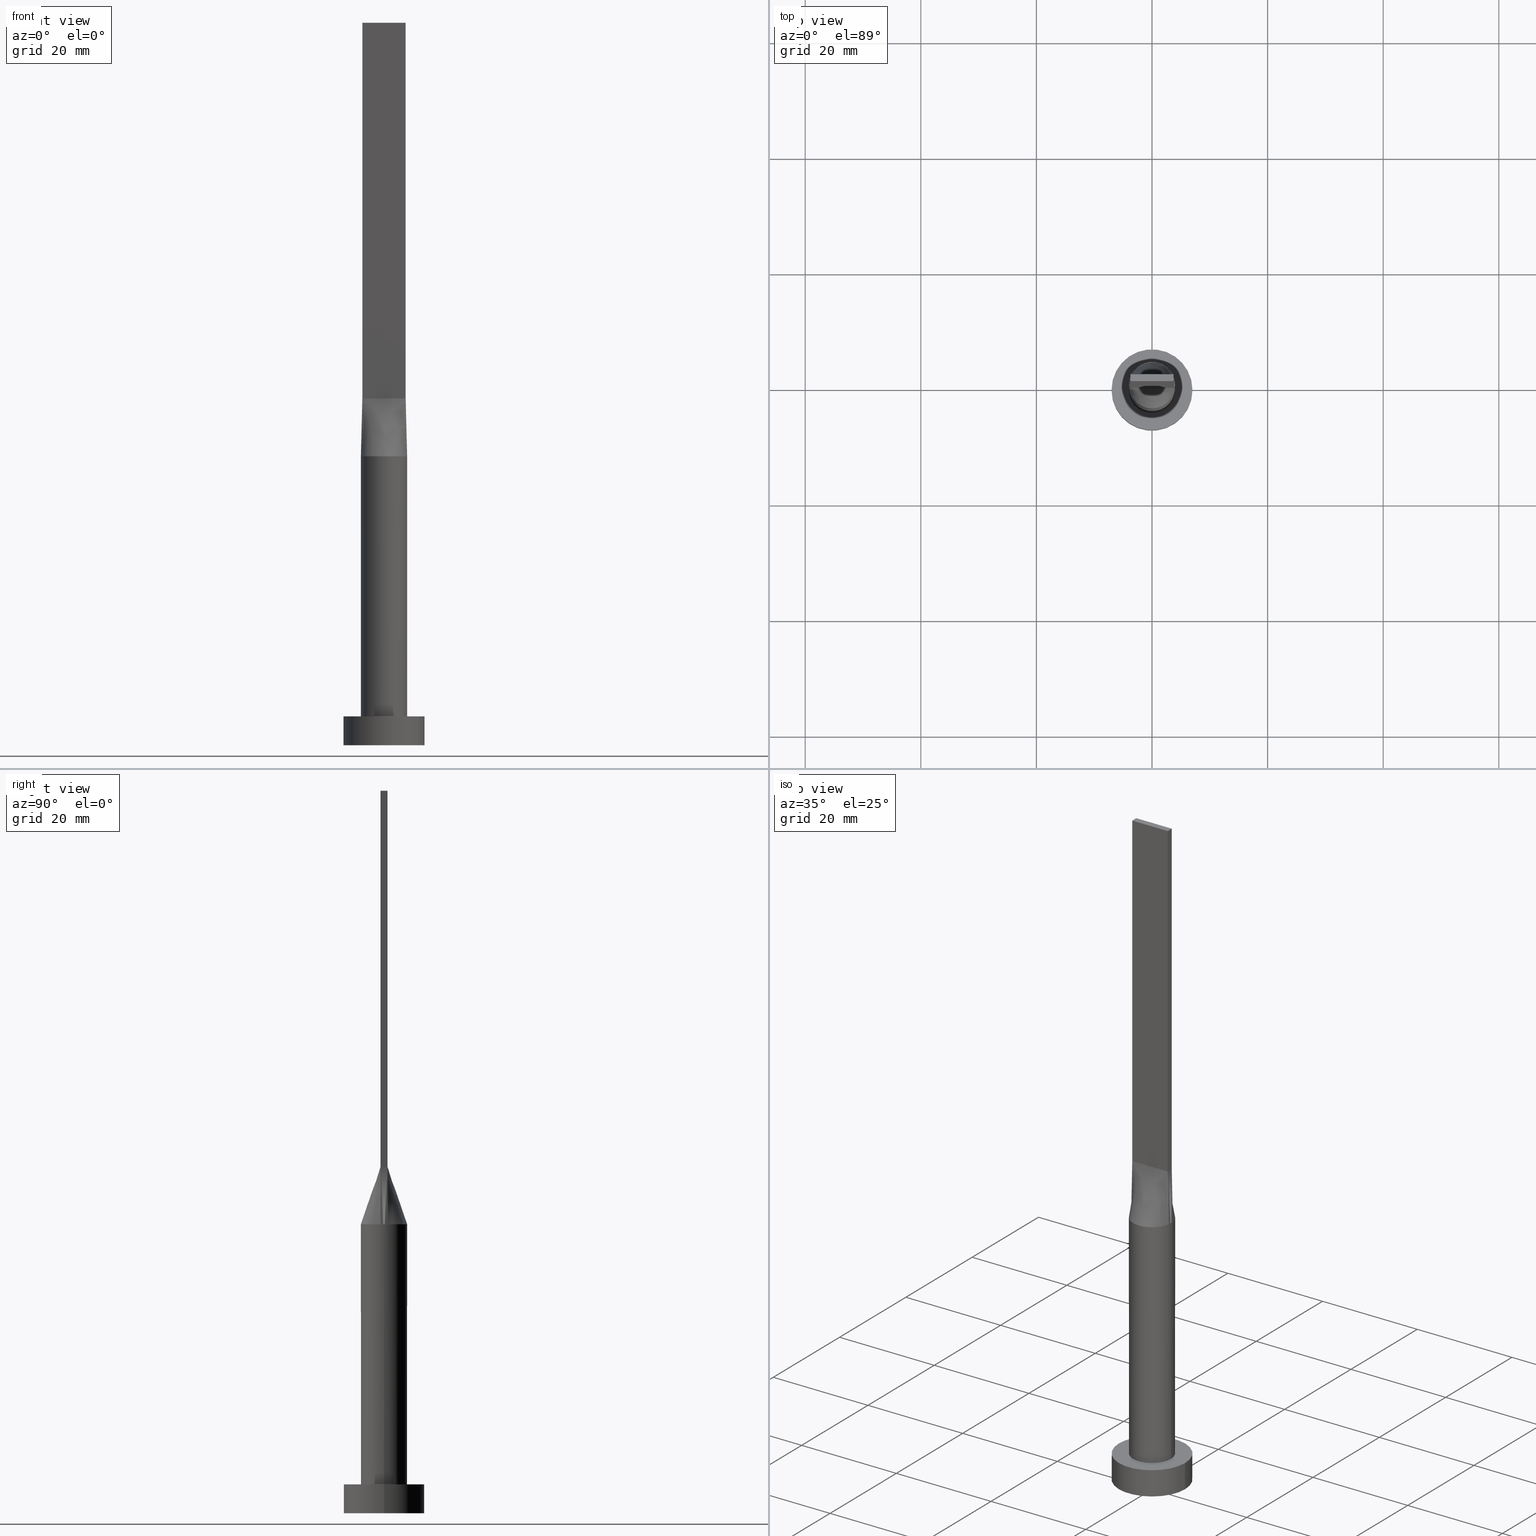
[diagram: canonical four-view strip — front | top / right | iso, engineering-drawing reading convention]
A machine part, canonical four-view strip (front | top / right | iso — engineering-drawing reading convention). The complete STEP part file that produces these views, byte-faithful:
ISO-10303-21;
HEADER;
FILE_DESCRIPTION (( 'STEP AP203' ),
    '1' );
FILE_NAME ('cbeb.STEP',
    '2023-02-13T10:47:16',
    ( '' ),
    ( '' ),
    'SwSTEP 2.0',
    'SolidWorks 2019',
    '' );
FILE_SCHEMA (( 'CONFIG_CONTROL_DESIGN' ));
ENDSEC;

DATA;
#1 = CARTESIAN_POINT ( 'NONE',  ( 3.800365609718893367, 1.311488165564687058, 49.99999999999998579 ) ) ;
#2 = CARTESIAN_POINT ( 'NONE',  ( -3.950111798046394007, -0.6320171791297864994, 49.99999999999999289 ) ) ;
#3 = DIRECTION ( 'NONE',  ( 0.000000000000000000, -1.000000000000000000, 0.000000000000000000 ) ) ;
#4 = VECTOR ( 'NONE', #518, 1000.000000000000000 ) ;
#5 = CARTESIAN_POINT ( 'NONE',  ( -3.800365609718893811, 1.311488165564686392, 49.99999999999999289 ) ) ;
#6 = DIRECTION ( 'NONE',  ( -0.000000000000000000, -0.000000000000000000, -1.000000000000000000 ) ) ;
#7 = APPROVAL_PERSON_ORGANIZATION ( #435, #467, #35 ) ;
#8 = DESIGN_CONTEXT ( 'detailed design', #320, 'design' ) ;
#9 = VERTEX_POINT ( 'NONE', #192 ) ;
#10 = CARTESIAN_POINT ( 'NONE',  ( -3.750000000000000000, -0.5999999999999993117, 60.00000000000000000 ) ) ;
#11 = CARTESIAN_POINT ( 'NONE',  ( 3.750000000000000000, -0.5999999999999997558, 125.0000000000000000 ) ) ;
#12 = VERTEX_POINT ( 'NONE', #267 ) ;
#13 = CARTESIAN_POINT ( 'NONE',  ( 0.5684794080625145130, 4.000000000000000000, 49.99999999999999289 ) ) ;
#14 = EDGE_CURVE ( 'NONE', #209, #164, #231, .T. ) ;
#15 = VECTOR ( 'NONE', #290, 1000.000000000000000 ) ;
#16 = CARTESIAN_POINT ( 'NONE',  ( 3.950097303404374038, 0.6320148730971578699, 49.99999999999999289 ) ) ;
#17 = APPROVAL_ROLE ( '' ) ;
#18 = AXIS2_PLACEMENT_3D ( 'NONE', #345, #313, #475 ) ;
#19 = LOCAL_TIME ( 11, 47, 16.00000000000000000, #400 ) ;
#20 = CARTESIAN_POINT ( 'NONE',  ( -2.500000000000000000, -0.5999999999999994227, 60.00000000000000000 ) ) ;
#21 = EDGE_CURVE ( 'NONE', #209, #177, #277, .T. ) ;
#22 = CARTESIAN_POINT ( 'NONE',  ( 0.3125000000000010547, 0.6000000000000000888, 59.99999999999999289 ) ) ;
#23 = LINE ( 'NONE', #203, #523 ) ;
#24 = B_SPLINE_SURFACE_WITH_KNOTS ( 'NONE', 3, 1, ( 
 ( #411, #10 ),
 ( #377, #157 ),
 ( #243, #504 ),
 ( #420, #20 ),
 ( #549, #64 ),
 ( #201, #330 ),
 ( #110, #286 ),
 ( #479, #87 ),
 ( #142, #33 ),
 ( #212, #353 ),
 ( #398, #476 ),
 ( #579, #346 ),
 ( #184, #522 ),
 ( #83, #137 ),
 ( #395, #263 ),
 ( #42, #519 ),
 ( #299, #389 ),
 ( #526, #133 ) ),
 .UNSPECIFIED., .F., .F., .F.,
 ( 4, 2, 2, 2, 2, 2, 2, 2, 4 ),
 ( 2, 2 ),
 ( 0.000000000000000000, 0.1250000000000000555, 0.2500000000000001110, 0.3750000000000001665, 0.5000000000000001110, 0.6250000000000001110, 0.7500000000000001110, 0.8750000000000000000, 1.000000000000000000 ),
 ( 0.000000000000000000, 1.000000000000000000 ),
 .UNSPECIFIED. ) ;
#25 = AXIS2_PLACEMENT_3D ( 'NONE', #485, #89, #265 ) ;
#26 = CARTESIAN_POINT ( 'NONE',  ( -3.124999999999999112, 0.6000000000000000888, 60.00000000000000000 ) ) ;
#27 = ORIENTED_EDGE ( 'NONE', *, *, #67, .F. ) ;
#28 = CARTESIAN_POINT ( 'NONE',  ( 0.000000000000000000, 0.000000000000000000, 5.000000000000000000 ) ) ;
#29 = ADVANCED_FACE ( 'NONE', ( #458 ), #59, .T. ) ;
#30 = ORIENTED_EDGE ( 'NONE', *, *, #378, .T. ) ;
#31 = DATE_AND_TIME ( #295, #160 ) ;
#32 = CARTESIAN_POINT ( 'NONE',  ( 1.250000000000001554, 0.6000000000000000888, 59.99999999999998579 ) ) ;
#33 = CARTESIAN_POINT ( 'NONE',  ( -0.3125000000000008327, -0.5999999999999995337, 60.00000000000000000 ) ) ;
#34 = ORIENTED_EDGE ( 'NONE', *, *, #116, .T. ) ;
#35 = APPROVAL_ROLE ( '' ) ;
#36 = DIRECTION ( 'NONE',  ( -0.000000000000000000, -0.000000000000000000, -1.000000000000000000 ) ) ;
#37 = DIRECTION ( 'NONE',  ( 0.000000000000000000, 0.000000000000000000, 1.000000000000000000 ) ) ;
#38 = ORIENTED_EDGE ( 'NONE', *, *, #40, .T. ) ;
#39 = APPROVAL_STATUS ( 'not_yet_approved' ) ;
#40 = EDGE_CURVE ( 'NONE', #9, #12, #138, .T. ) ;
#41 = CARTESIAN_POINT ( 'NONE',  ( 7.000000000000000000, 8.572527594031473190E-16, 0.000000000000000000 ) ) ;
#42 = CARTESIAN_POINT ( 'NONE',  ( 3.800365609718893367, -1.311488165564686614, 49.99999999999998579 ) ) ;
#43 = EDGE_LOOP ( 'NONE', ( #450, #220 ) ) ;
#44 = LINE ( 'NONE', #268, #4 ) ;
#45 = CARTESIAN_POINT ( 'NONE',  ( 4.000000000000000000, 4.898587196589411843E-16, 49.99999999999999289 ) ) ;
#46 = ORIENTED_EDGE ( 'NONE', *, *, #162, .F. ) ;
#47 = ORGANIZATION ( 'NEUR�EN�', 'NEUR�EN�', '' ) ;
#48 = LINE ( 'NONE', #226, #354 ) ;
#49 = CARTESIAN_POINT ( 'NONE',  ( 3.749999999999999556, 0.4000000000000002998, 59.99999999999999289 ) ) ;
#50 = ORIENTED_EDGE ( 'NONE', *, *, #261, .T. ) ;
#51 = CC_DESIGN_PERSON_AND_ORGANIZATION_ASSIGNMENT ( #225, #168, ( #199 ) ) ;
#52 = CARTESIAN_POINT ( 'NONE',  ( -3.750000000000000000, 0.6000000000000001998, 60.00000000000000000 ) ) ;
#53 =( NAMED_UNIT ( * ) SI_UNIT ( $, .STERADIAN. ) SOLID_ANGLE_UNIT ( ) );
#54 = ORIENTED_EDGE ( 'NONE', *, *, #21, .F. ) ;
#55 = DIRECTION ( 'NONE',  ( 1.000000000000000000, 0.000000000000000000, 0.000000000000000000 ) ) ;
#56 = APPROVAL_DATE_TIME ( #325, #339 ) ;
#57 = ORIENTED_EDGE ( 'NONE', *, *, #80, .T. ) ;
#58 = CARTESIAN_POINT ( 'NONE',  ( 1.134810363096318664, 3.874001625491799050, 49.99999999999999289 ) ) ;
#59 = CYLINDRICAL_SURFACE ( 'NONE', #276, 7.000000000000000000 ) ;
#60 = CARTESIAN_POINT ( 'NONE',  ( -3.750000000000000000, -0.5999999999999993117, 60.00000000000000000 ) ) ;
#61 = ADVANCED_FACE ( 'NONE', ( #406 ), #114, .T. ) ;
#62 = APPROVAL_STATUS ( 'not_yet_approved' ) ;
#63 = CARTESIAN_POINT ( 'NONE',  ( -2.127794970397209884, 3.430476893735948440, 49.99999999999999289 ) ) ;
#64 = CARTESIAN_POINT ( 'NONE',  ( -2.187500000000000000, -0.5999999999999994227, 60.00000000000000000 ) ) ;
#65 = AXIS2_PLACEMENT_3D ( 'NONE', #173, #401, #183 ) ;
#66 = CIRCLE ( 'NONE', #465, 4.000000000000000000 ) ;
#67 = EDGE_CURVE ( 'NONE', #386, #580, #554, .T. ) ;
#68 = CARTESIAN_POINT ( 'NONE',  ( 1.562500000000001332, 0.6000000000000000888, 59.99999999999998579 ) ) ;
#69 = CYLINDRICAL_SURFACE ( 'NONE', #488, 7.000000000000000000 ) ;
#70 = CARTESIAN_POINT ( 'NONE',  ( -0.5684794080625158452, 3.999999999999999112, 49.99999999999999289 ) ) ;
#71 = EDGE_LOOP ( 'NONE', ( #527, #167, #319, #185 ) ) ;
#72 = DIRECTION ( 'NONE',  ( -1.000000000000000000, 0.000000000000000000, 0.000000000000000000 ) ) ;
#73 = CC_DESIGN_PERSON_AND_ORGANIZATION_ASSIGNMENT ( #453, #328, ( #511 ) ) ;
#74 = ORIENTED_EDGE ( 'NONE', *, *, #151, .T. ) ;
#75 = PLANE ( 'NONE',  #337 ) ;
#76 = ORIENTED_EDGE ( 'NONE', *, *, #551, .F. ) ;
#77 = FACE_OUTER_BOUND ( 'NONE', #563, .T. ) ;
#78 = CARTESIAN_POINT ( 'NONE',  ( -4.000000000000000000, 0.000000000000000000, 5.000000000000000000 ) ) ;
#79 = ORIENTED_EDGE ( 'NONE', *, *, #314, .F. ) ;
#80 = EDGE_CURVE ( 'NONE', #119, #495, #23, .T. ) ;
#81 = AXIS2_PLACEMENT_3D ( 'NONE', #533, #37, #482 ) ;
#82 = DIRECTION ( 'NONE',  ( 0.000000000000000000, 0.000000000000000000, 1.000000000000000000 ) ) ;
#83 = CARTESIAN_POINT ( 'NONE',  ( 3.219262664220059023, -2.422342486356523938, 50.00000000000000000 ) ) ;
#84 = ORIENTED_EDGE ( 'NONE', *, *, #261, .F. ) ;
#85 = DATE_TIME_ROLE ( 'classification_date' ) ;
#86 = CARTESIAN_POINT ( 'NONE',  ( -3.750000000000000000, -0.5999999999999993117, 60.00000000000000000 ) ) ;
#87 = CARTESIAN_POINT ( 'NONE',  ( -0.6250000000000004441, -0.5999999999999994227, 60.00000000000000000 ) ) ;
#88 = ORIENTED_EDGE ( 'NONE', *, *, #571, .F. ) ;
#89 = DIRECTION ( 'NONE',  ( 0.000000000000000000, 0.000000000000000000, 1.000000000000000000 ) ) ;
#90 = ADVANCED_FACE ( 'NONE', ( #121 ), #69, .T. ) ;
#91 = CARTESIAN_POINT ( 'NONE',  ( 3.999684524546696540, 0.2119768420469383408, 49.99999999999999289 ) ) ;
#92 = DIRECTION ( 'NONE',  ( -0.000000000000000000, -0.000000000000000000, -1.000000000000000000 ) ) ;
#93 =( GEOMETRIC_REPRESENTATION_CONTEXT ( 3 ) GLOBAL_UNCERTAINTY_ASSIGNED_CONTEXT ( ( #414 ) ) GLOBAL_UNIT_ASSIGNED_CONTEXT ( ( #149, #457, #53 ) ) REPRESENTATION_CONTEXT ( 'NONE', 'WORKASPACE' ) );
#94 = DIRECTION ( 'NONE',  ( 1.000000000000000000, 1.065814103640150279E-14, 0.000000000000000000 ) ) ;
#95 = FACE_OUTER_BOUND ( 'NONE', #180, .T. ) ;
#96 = EDGE_LOOP ( 'NONE', ( #76, #46, #454, #534, #57, #355 ) ) ;
#97 = CARTESIAN_POINT ( 'NONE',  ( 7.000000000000000000, 8.572527594031473190E-16, 5.000000000000000000 ) ) ;
#98 = ORIENTED_EDGE ( 'NONE', *, *, #181, .F. ) ;
#99 = CARTESIAN_POINT ( 'NONE',  ( 3.461914487322979017, 2.043998057340944197, 49.99999999999997158 ) ) ;
#100 = ORIENTED_EDGE ( 'NONE', *, *, #349, .F. ) ;
#101 = VECTOR ( 'NONE', #331, 1000.000000000000000 ) ;
#102 = EDGE_CURVE ( 'NONE', #495, #434, #351, .T. ) ;
#103 = DIRECTION ( 'NONE',  ( -1.000000000000000000, 5.782411586589357392E-17, 0.000000000000000000 ) ) ;
#104 = VECTOR ( 'NONE', #497, 1000.000000000000000 ) ;
#105 = COORDINATED_UNIVERSAL_TIME_OFFSET ( 1, 0, .AHEAD. ) ;
#106 = CARTESIAN_POINT ( 'NONE',  ( 3.999842262273348936, 9.852009208038395466E-16, 49.99999999999999289 ) ) ;
#107 = CARTESIAN_POINT ( 'NONE',  ( -0.5684794080625158452, 3.999999999999999112, 49.99999999999999289 ) ) ;
#108 = EDGE_CURVE ( 'NONE', #129, #209, #165, .T. ) ;
#109 = CLOSED_SHELL ( 'NONE', ( #425, #29, #90, #250, #139, #418, #455, #556, #222, #61, #305, #528, #383, #484, #496 ) ) ;
#110 = CARTESIAN_POINT ( 'NONE',  ( -2.127794970397209884, -3.430476893735947996, 50.00000000000000000 ) ) ;
#111 = CARTESIAN_POINT ( 'NONE',  ( 3.437500000000000000, 0.6000000000000001998, 60.00000000000000000 ) ) ;
#112 = CIRCLE ( 'NONE', #234, 4.000000000000000000 ) ;
#113 = LINE ( 'NONE', #341, #15 ) ;
#114 = B_SPLINE_SURFACE_WITH_KNOTS ( 'NONE', 3, 1, ( 
 ( #365, #538 ),
 ( #291, #111 ),
 ( #293, #163 ),
 ( #117, #288 ),
 ( #506, #247 ),
 ( #296, #68 ),
 ( #249, #32 ),
 ( #382, #421 ),
 ( #161, #22 ),
 ( #70, #508 ),
 ( #512, #211 ),
 ( #422, #426 ),
 ( #202, #381 ),
 ( #429, #515 ),
 ( #424, #510 ),
 ( #334, #26 ),
 ( #466, #208 ),
 ( #379, #335 ) ),
 .UNSPECIFIED., .F., .F., .F.,
 ( 4, 2, 2, 2, 2, 2, 2, 2, 4 ),
 ( 2, 2 ),
 ( 0.000000000000000000, 0.1249999999999999445, 0.2499999999999998890, 0.3749999999999998335, 0.4999999999999997780, 0.6249999999999997780, 0.7499999999999998890, 0.8749999999999998890, 1.000000000000000000 ),
 ( 0.000000000000000000, 1.000000000000000000 ),
 .UNSPECIFIED. ) ;
#115 = FACE_OUTER_BOUND ( 'NONE', #403, .T. ) ;
#116 = EDGE_CURVE ( 'NONE', #572, #150, #113, .T. ) ;
#117 = CARTESIAN_POINT ( 'NONE',  ( 3.461914487322979017, 2.043998057340944197, 49.99999999999997158 ) ) ;
#118 = B_SPLINE_SURFACE_WITH_KNOTS ( 'NONE', 3, 1, ( 
 ( #219, #176 ),
 ( #221, #575 ),
 ( #179, #357 ),
 ( #91, #266 ),
 ( #445, #49 ),
 ( #227, #402 ) ),
 .UNSPECIFIED., .F., .F., .F.,
 ( 4, 2, 4 ),
 ( 2, 2 ),
 ( 0.000000000000000000, 0.5000000000000000000, 1.000000000000000000 ),
 ( 0.000000000000000000, 1.000000000000000000 ),
 .UNSPECIFIED. ) ;
#119 = VERTEX_POINT ( 'NONE', #544 ) ;
#120 = APPROVAL_STATUS ( 'not_yet_approved' ) ;
#121 = FACE_OUTER_BOUND ( 'NONE', #555, .T. ) ;
#122 = VERTEX_POINT ( 'NONE', #553 ) ;
#123 = APPROVAL_DATE_TIME ( #31, #197 ) ;
#124 = DIRECTION ( 'NONE',  ( 0.000000000000000000, 0.000000000000000000, 1.000000000000000000 ) ) ;
#125 = DIRECTION ( 'NONE',  ( -1.000000000000000000, 0.000000000000000000, 0.000000000000000000 ) ) ;
#126 = ORIENTED_EDGE ( 'NONE', *, *, #372, .T. ) ;
#127 = CARTESIAN_POINT ( 'NONE',  ( -3.749999999999999556, 0.4000000000000001887, 59.99999999999999289 ) ) ;
#128 = FACE_OUTER_BOUND ( 'NONE', #71, .T. ) ;
#129 = VERTEX_POINT ( 'NONE', #472 ) ;
#130 = AXIS2_PLACEMENT_3D ( 'NONE', #310, #82, #387 ) ;
#131 = AXIS2_PLACEMENT_3D ( 'NONE', #367, #321, #329 ) ;
#132 = CARTESIAN_POINT ( 'NONE',  ( 3.950097303404374038, 0.6320148730971578699, 49.99999999999999289 ) ) ;
#133 = CARTESIAN_POINT ( 'NONE',  ( 3.750000000000000000, -0.5999999999999997558, 60.00000000000000000 ) ) ;
#134 = VERTEX_POINT ( 'NONE', #252 ) ;
#135 = COORDINATED_UNIVERSAL_TIME_OFFSET ( 1, 0, .AHEAD. ) ;
#136 = CARTESIAN_POINT ( 'NONE',  ( -3.750000000000000000, -0.5999999999999993117, 60.00000000000000000 ) ) ;
#137 = CARTESIAN_POINT ( 'NONE',  ( 2.187499999999999556, -0.5999999999999996447, 60.00000000000000000 ) ) ;
#138 = LINE ( 'NONE', #228, #442 ) ;
#139 = ADVANCED_FACE ( 'NONE', ( #115 ), #75, .F. ) ;
#140 = CARTESIAN_POINT ( 'NONE',  ( -3.750000000000000000, 0.6000000000000001998, 60.00000000000000000 ) ) ;
#141 = PERSON ( 'NEUR�EN�', 'NEUR�EN�', 'NEUR�EN�', ('NEUR�EN�'), ('NEUR�EN�'), ('NEUR�EN�') ) ;
#142 = CARTESIAN_POINT ( 'NONE',  ( -0.5684794080625156232, -4.000000000000000000, 49.99999999999998579 ) ) ;
#143 = ORIENTED_EDGE ( 'NONE', *, *, #551, .T. ) ;
#144 = AXIS2_PLACEMENT_3D ( 'NONE', #302, #174, #269 ) ;
#145 = FACE_OUTER_BOUND ( 'NONE', #350, .T. ) ;
#146 = DIRECTION ( 'NONE',  ( 0.000000000000000000, 0.000000000000000000, 1.000000000000000000 ) ) ;
#147 = VERTEX_POINT ( 'NONE', #132 ) ;
#148 = CARTESIAN_POINT ( 'NONE',  ( 0.000000000000000000, 0.000000000000000000, 49.99999999999999289 ) ) ;
#149 =( LENGTH_UNIT ( ) NAMED_UNIT ( * ) SI_UNIT ( .MILLI., .METRE. ) );
#150 = VERTEX_POINT ( 'NONE', #41 ) ;
#151 = EDGE_CURVE ( 'NONE', #477, #177, #521, .T. ) ;
#152 = LINE ( 'NONE', #327, #104 ) ;
#153 = DATE_AND_TIME ( #498, #459 ) ;
#154 = VECTOR ( 'NONE', #468, 1000.000000000000000 ) ;
#155 = DIRECTION ( 'NONE',  ( 0.000000000000000000, 0.000000000000000000, 1.000000000000000000 ) ) ;
#156 = CC_DESIGN_PERSON_AND_ORGANIZATION_ASSIGNMENT ( #251, #214, ( #410 ) ) ;
#157 = CARTESIAN_POINT ( 'NONE',  ( -3.437500000000000000, -0.5999999999999993117, 60.00000000000000000 ) ) ;
#158 = DIRECTION ( 'NONE',  ( -0.000000000000000000, -0.000000000000000000, -1.000000000000000000 ) ) ;
#159 = CARTESIAN_POINT ( 'NONE',  ( 3.750000000000000000, 0.6000000000000001998, 125.0000000000000000 ) ) ;
#160 = LOCAL_TIME ( 11, 47, 16.00000000000000000, #568 ) ;
#161 = CARTESIAN_POINT ( 'NONE',  ( 0.5684794080625145130, 4.000000000000000000, 49.99999999999999289 ) ) ;
#162 = EDGE_CURVE ( 'NONE', #134, #343, #285, .T. ) ;
#163 = CARTESIAN_POINT ( 'NONE',  ( 3.125000000000000000, 0.6000000000000001998, 60.00000000000000000 ) ) ;
#164 = VERTEX_POINT ( 'NONE', #525 ) ;
#165 = LINE ( 'NONE', #159, #101 ) ;
#166 = APPROVAL_PERSON_ORGANIZATION ( #573, #197, #517 ) ;
#167 = ORIENTED_EDGE ( 'NONE', *, *, #581, .F. ) ;
#168 = PERSON_AND_ORGANIZATION_ROLE ( 'classification_officer' ) ;
#169 = CC_DESIGN_PERSON_AND_ORGANIZATION_ASSIGNMENT ( #376, #408, ( #446 ) ) ;
#170 = CARTESIAN_POINT ( 'NONE',  ( 3.750000000000000000, -0.5999999999999997558, 125.0000000000000000 ) ) ;
#171 = PLANE ( 'NONE',  #245 ) ;
#172 = ORIENTED_EDGE ( 'NONE', *, *, #359, .F. ) ;
#173 = CARTESIAN_POINT ( 'NONE',  ( 3.750000000000000000, 0.6000000000000001998, 125.0000000000000000 ) ) ;
#174 = DIRECTION ( 'NONE',  ( 1.000000000000000000, 0.000000000000000000, -0.000000000000000000 ) ) ;
#175 = CARTESIAN_POINT ( 'NONE',  ( -3.999684524546696096, 0.2119768420469390069, 49.99999999999999289 ) ) ;
#176 = CARTESIAN_POINT ( 'NONE',  ( 3.750000000000000000, -0.5999999999999997558, 60.00000000000000000 ) ) ;
#177 = VERTEX_POINT ( 'NONE', #52 ) ;
#178 = CARTESIAN_POINT ( 'NONE',  ( -3.749999999999999556, 0.2000000000000002887, 59.99999999999999289 ) ) ;
#179 = CARTESIAN_POINT ( 'NONE',  ( 3.999684524546696540, -0.2119768420469393122, 49.99999999999999289 ) ) ;
#180 = EDGE_LOOP ( 'NONE', ( #338, #270, #567, #309 ) ) ;
#181 = EDGE_CURVE ( 'NONE', #129, #122, #301, .T. ) ;
#182 = PERSON_AND_ORGANIZATION_ROLE ( 'design_supplier' ) ;
#183 = DIRECTION ( 'NONE',  ( 0.000000000000000000, -0.000000000000000000, -1.000000000000000000 ) ) ;
#184 = CARTESIAN_POINT ( 'NONE',  ( 2.553164211252348270, -3.116528153703943094, 49.99999999999999289 ) ) ;
#185 = ORIENTED_EDGE ( 'NONE', *, *, #21, .T. ) ;
#186 = CARTESIAN_POINT ( 'NONE',  ( 2.553164211252348714, 3.116528153703943538, 49.99999999999999289 ) ) ;
#187 = VECTOR ( 'NONE', #3, 1000.000000000000000 ) ;
#188 = ORIENTED_EDGE ( 'NONE', *, *, #412, .T. ) ;
#189 = AXIS2_PLACEMENT_3D ( 'NONE', #148, #417, #407 ) ;
#190 = FACE_OUTER_BOUND ( 'NONE', #96, .T. ) ;
#191 = CC_DESIGN_DATE_AND_TIME_ASSIGNMENT ( #153, #238, ( #446 ) ) ;
#192 = CARTESIAN_POINT ( 'NONE',  ( -7.000000000000000000, 0.000000000000000000, 5.000000000000000000 ) ) ;
#193 = DIRECTION ( 'NONE',  ( 0.000000000000000000, 1.000000000000000000, 0.000000000000000000 ) ) ;
#194 = CARTESIAN_POINT ( 'NONE',  ( 0.000000000000000000, 0.000000000000000000, 0.000000000000000000 ) ) ;
#195 = ORIENTED_EDGE ( 'NONE', *, *, #326, .T. ) ;
#196 = DIRECTION ( 'NONE',  ( 5.782411586589357392E-17, 1.000000000000000000, -0.000000000000000000 ) ) ;
#197 = APPROVAL ( #120, 'NEUR�EN�' ) ;
#198 = CARTESIAN_POINT ( 'NONE',  ( -1.134810363096319996, 3.874001625491799938, 50.00000000000000711 ) ) ;
#199 = SECURITY_CLASSIFICATION ( '', '', #428 ) ;
#200 = LINE ( 'NONE', #548, #546 ) ;
#201 = CARTESIAN_POINT ( 'NONE',  ( -2.553164211252349158, -3.116528153703943094, 50.00000000000000711 ) ) ;
#202 = CARTESIAN_POINT ( 'NONE',  ( -2.553164211252348714, 3.116528153703943538, 49.99999999999999289 ) ) ;
#203 = CARTESIAN_POINT ( 'NONE',  ( -4.000000000000000000, 0.000000000000000000, 49.99999999999999289 ) ) ;
#204 = EDGE_CURVE ( 'NONE', #134, #363, #44, .T. ) ;
#205 = CIRCLE ( 'NONE', #278, 7.000000000000000000 ) ;
#206 = LOCAL_TIME ( 11, 47, 16.00000000000000000, #135 ) ;
#207 = ORIENTED_EDGE ( 'NONE', *, *, #332, .T. ) ;
#208 = CARTESIAN_POINT ( 'NONE',  ( -3.437499999999999556, 0.6000000000000000888, 60.00000000000000000 ) ) ;
#209 = VERTEX_POINT ( 'NONE', #574 ) ;
#210 = CC_DESIGN_DATE_AND_TIME_ASSIGNMENT ( #577, #85, ( #199 ) ) ;
#211 = CARTESIAN_POINT ( 'NONE',  ( -0.6249999999999982236, 0.6000000000000000888, 59.99999999999999289 ) ) ;
#212 = CARTESIAN_POINT ( 'NONE',  ( 0.5684794080625150681, -4.000000000000000888, 49.99999999999999289 ) ) ;
#213 = VECTOR ( 'NONE', #258, 1000.000000000000000 ) ;
#214 = PERSON_AND_ORGANIZATION_ROLE ( 'creator' ) ;
#215 = PLANE ( 'NONE',  #18 ) ;
#216 = DIRECTION ( 'NONE',  ( 0.000000000000000000, 0.000000000000000000, 1.000000000000000000 ) ) ;
#217 = ORIENTED_EDGE ( 'NONE', *, *, #271, .F. ) ;
#218 = CARTESIAN_POINT ( 'NONE',  ( 3.750000000000000000, -0.5999999999999997558, 125.0000000000000000 ) ) ;
#219 = CARTESIAN_POINT ( 'NONE',  ( 3.949762527666821565, -0.6319620044266909265, 49.99999999999999289 ) ) ;
#220 = ORIENTED_EDGE ( 'NONE', *, *, #462, .F. ) ;
#221 = CARTESIAN_POINT ( 'NONE',  ( 3.983043858920071845, -0.4239536840938781248, 49.99999999999999289 ) ) ;
#222 = ADVANCED_FACE ( 'NONE', ( #77 ), #248, .T. ) ;
#223 = ORIENTED_EDGE ( 'NONE', *, *, #581, .T. ) ;
#224 = AXIS2_PLACEMENT_3D ( 'NONE', #284, #196, #103 ) ;
#225 = PERSON_AND_ORGANIZATION ( #141, #47 ) ;
#226 = CARTESIAN_POINT ( 'NONE',  ( -3.750000000000000000, 0.6000000000000001998, 60.00000000000000000 ) ) ;
#227 = CARTESIAN_POINT ( 'NONE',  ( 3.949762527666821565, 0.6319620044266899273, 49.99999999999999289 ) ) ;
#228 = CARTESIAN_POINT ( 'NONE',  ( -7.000000000000000000, 0.000000000000000000, 5.000000000000000000 ) ) ;
#229 = DIRECTION ( 'NONE',  ( 1.000000000000000000, -5.782411586589357392E-17, 0.000000000000000000 ) ) ;
#230 = MANIFOLD_SOLID_BREP ( 'P�idat vysunut�m5', #109 ) ;
#231 = LINE ( 'NONE', #323, #187 ) ;
#232 = DIRECTION ( 'NONE',  ( 0.000000000000000000, 0.000000000000000000, 1.000000000000000000 ) ) ;
#233 = EDGE_LOOP ( 'NONE', ( #30, #74, #471, #415 ) ) ;
#234 = AXIS2_PLACEMENT_3D ( 'NONE', #530, #440, #308 ) ;
#235 = FACE_OUTER_BOUND ( 'NONE', #396, .T. ) ;
#236 = ORIENTED_EDGE ( 'NONE', *, *, #462, .T. ) ;
#237 = DIRECTION ( 'NONE',  ( 1.000000000000000000, 0.000000000000000000, 0.000000000000000000 ) ) ;
#238 = DATE_TIME_ROLE ( 'creation_date' ) ;
#239 = CARTESIAN_POINT ( 'NONE',  ( -3.461914487322979905, 2.043998057340944197, 50.00000000000000711 ) ) ;
#240 = LINE ( 'NONE', #11, #552 ) ;
#241 = VECTOR ( 'NONE', #532, 1000.000000000000000 ) ;
#242 = CC_DESIGN_PERSON_AND_ORGANIZATION_ASSIGNMENT ( #306, #182, ( #410 ) ) ;
#243 = CARTESIAN_POINT ( 'NONE',  ( -3.800365609718892923, -1.311488165564685726, 49.99999999999998579 ) ) ;
#244 = VECTOR ( 'NONE', #356, 1000.000000000000000 ) ;
#245 = AXIS2_PLACEMENT_3D ( 'NONE', #255, #125, #362 ) ;
#246 = EDGE_CURVE ( 'NONE', #386, #363, #262, .T. ) ;
#247 = CARTESIAN_POINT ( 'NONE',  ( 2.187500000000000444, 0.6000000000000000888, 59.99999999999999289 ) ) ;
#248 = B_SPLINE_SURFACE_WITH_KNOTS ( 'NONE', 3, 1, ( 
 ( #478, #140 ),
 ( #444, #127 ),
 ( #175, #178 ),
 ( #394, #298 ),
 ( #254, #561 ),
 ( #481, #86 ) ),
 .UNSPECIFIED., .F., .F., .F.,
 ( 4, 2, 4 ),
 ( 2, 2 ),
 ( 0.000000000000000000, 0.5000000000000000000, 1.000000000000000000 ),
 ( 0.000000000000000000, 1.000000000000000000 ),
 .UNSPECIFIED. ) ;
#249 = CARTESIAN_POINT ( 'NONE',  ( 2.127794970397208107, 3.430476893735948885, 49.99999999999998579 ) ) ;
#250 = ADVANCED_FACE ( 'NONE', ( #529, #439 ), #215, .T. ) ;
#251 = PERSON_AND_ORGANIZATION ( #141, #47 ) ;
#252 = CARTESIAN_POINT ( 'NONE',  ( 3.950116941581656604, -0.6320178829360036943, 49.99999999999999289 ) ) ;
#253 = EDGE_LOOP ( 'NONE', ( #84, #143, #236, #520, #516, #292 ) ) ;
#254 = CARTESIAN_POINT ( 'NONE',  ( -3.983043858920070956, -0.4239536840938767370, 49.99999999999999289 ) ) ;
#255 = CARTESIAN_POINT ( 'NONE',  ( 3.750000000000000000, -0.5999999999999997558, 125.0000000000000000 ) ) ;
#256 = ORIENTED_EDGE ( 'NONE', *, *, #204, .F. ) ;
#257 = DIRECTION ( 'NONE',  ( 1.000000000000000000, 0.000000000000000000, 0.000000000000000000 ) ) ;
#258 = DIRECTION ( 'NONE',  ( -0.000000000000000000, -0.000000000000000000, -1.000000000000000000 ) ) ;
#259 = EDGE_LOOP ( 'NONE', ( #492, #98, #79, #469 ) ) ;
#260 = SHAPE_DEFINITION_REPRESENTATION ( #423, #539 ) ;
#261 = EDGE_CURVE ( 'NONE', #343, #147, #340, .T. ) ;
#262 = LINE ( 'NONE', #136, #244 ) ;
#263 = CARTESIAN_POINT ( 'NONE',  ( 2.499999999999998668, -0.5999999999999996447, 60.00000000000000000 ) ) ;
#264 = ORIENTED_EDGE ( 'NONE', *, *, #289, .T. ) ;
#265 = DIRECTION ( 'NONE',  ( 1.000000000000000000, 0.000000000000000000, 0.000000000000000000 ) ) ;
#266 = CARTESIAN_POINT ( 'NONE',  ( 3.749999999999999556, 0.2000000000000003997, 59.99999999999999289 ) ) ;
#267 = CARTESIAN_POINT ( 'NONE',  ( -7.000000000000000000, 0.000000000000000000, 0.000000000000000000 ) ) ;
#268 = CARTESIAN_POINT ( 'NONE',  ( 3.849881263833410561, -0.6159810022133445084, 54.99999999999999289 ) ) ;
#269 = DIRECTION ( 'NONE',  ( -0.000000000000000000, 0.000000000000000000, -1.000000000000000000 ) ) ;
#270 = ORIENTED_EDGE ( 'NONE', *, *, #14, .T. ) ;
#271 = EDGE_CURVE ( 'NONE', #12, #150, #205, .T. ) ;
#272 = DIRECTION ( 'NONE',  ( 0.000000000000000000, 0.000000000000000000, 1.000000000000000000 ) ) ;
#273 = MECHANICAL_CONTEXT ( 'NONE', #451, 'mechanical' ) ;
#274 = VERTEX_POINT ( 'NONE', #218 ) ;
#275 = CARTESIAN_POINT ( 'NONE',  ( -3.750000000000000000, -0.5999999999999993117, 125.0000000000000000 ) ) ;
#276 = AXIS2_PLACEMENT_3D ( 'NONE', #399, #371, #483 ) ;
#277 = LINE ( 'NONE', #448, #464 ) ;
#278 = AXIS2_PLACEMENT_3D ( 'NONE', #431, #347, #257 ) ;
#279 = AXIS2_PLACEMENT_3D ( 'NONE', #486, #216, #392 ) ;
#280 = CARTESIAN_POINT ( 'NONE',  ( -3.897760447583618504, 0.9569750049467115049, 50.00000000000001421 ) ) ;
#281 = PERSON_AND_ORGANIZATION ( #141, #47 ) ;
#282 = DIRECTION ( 'NONE',  ( 0.000000000000000000, 0.000000000000000000, 1.000000000000000000 ) ) ;
#283 = EDGE_CURVE ( 'NONE', #9, #572, #559, .T. ) ;
#284 = CARTESIAN_POINT ( 'NONE',  ( -3.750000000000000000, -0.5999999999999993117, 125.0000000000000000 ) ) ;
#285 = CIRCLE ( 'NONE', #430, 4.000000000000000000 ) ;
#286 = CARTESIAN_POINT ( 'NONE',  ( -1.250000000000000222, -0.5999999999999994227, 60.00000000000000000 ) ) ;
#287 = VECTOR ( 'NONE', #318, 1000.000000000000000 ) ;
#288 = CARTESIAN_POINT ( 'NONE',  ( 2.500000000000000444, 0.6000000000000000888, 59.99999999999999289 ) ) ;
#289 = EDGE_CURVE ( 'NONE', #122, #177, #48, .T. ) ;
#290 = DIRECTION ( 'NONE',  ( -0.000000000000000000, -0.000000000000000000, -1.000000000000000000 ) ) ;
#291 = CARTESIAN_POINT ( 'NONE',  ( 3.897760447583618948, 0.9569750049467118380, 50.00000000000000711 ) ) ;
#292 = ORIENTED_EDGE ( 'NONE', *, *, #378, .F. ) ;
#293 = CARTESIAN_POINT ( 'NONE',  ( 3.800365609718893367, 1.311488165564687058, 49.99999999999998579 ) ) ;
#294 = ORIENTED_EDGE ( 'NONE', *, *, #151, .F. ) ;
#295 = CALENDAR_DATE ( 2023, 13, 2 ) ;
#296 = CARTESIAN_POINT ( 'NONE',  ( 2.553164211252348714, 3.116528153703943538, 49.99999999999999289 ) ) ;
#297 = ORIENTED_EDGE ( 'NONE', *, *, #514, .F. ) ;
#298 = CARTESIAN_POINT ( 'NONE',  ( -3.749999999999999556, -0.1999999999999995115, 59.99999999999999289 ) ) ;
#299 = CARTESIAN_POINT ( 'NONE',  ( 3.897760447583619836, -0.9569750049467118380, 50.00000000000000711 ) ) ;
#300 = ORIENTED_EDGE ( 'NONE', *, *, #40, .F. ) ;
#301 = LINE ( 'NONE', #307, #505 ) ;
#302 = CARTESIAN_POINT ( 'NONE',  ( -3.750000000000000000, 0.6000000000000001998, 125.0000000000000000 ) ) ;
#303 = APPROVAL_PERSON_ORGANIZATION ( #281, #339, #17 ) ;
#304 = EDGE_LOOP ( 'NONE', ( #264, #54, #441, #531 ) ) ;
#305 = ADVANCED_FACE ( 'NONE', ( #449 ), #565, .F. ) ;
#306 = PERSON_AND_ORGANIZATION ( #141, #47 ) ;
#307 = CARTESIAN_POINT ( 'NONE',  ( 3.750000000000000000, 0.6000000000000001998, 125.0000000000000000 ) ) ;
#308 = DIRECTION ( 'NONE',  ( 1.000000000000000000, 0.000000000000000000, 0.000000000000000000 ) ) ;
#309 = ORIENTED_EDGE ( 'NONE', *, *, #314, .T. ) ;
#310 = CARTESIAN_POINT ( 'NONE',  ( 0.000000000000000000, 0.000000000000000000, 49.99999999999999289 ) ) ;
#311 = CARTESIAN_POINT ( 'NONE',  ( -3.950102418235696522, 0.6320155757311000100, 49.99999999999999289 ) ) ;
#312 = ORIENTED_EDGE ( 'NONE', *, *, #283, .T. ) ;
#313 = DIRECTION ( 'NONE',  ( 0.000000000000000000, 0.000000000000000000, 1.000000000000000000 ) ) ;
#314 = EDGE_CURVE ( 'NONE', #274, #129, #489, .T. ) ;
#315 = CARTESIAN_POINT ( 'NONE',  ( -3.750000000000000000, 0.6000000000000001998, 60.00000000000000000 ) ) ;
#316 = ORIENTED_EDGE ( 'NONE', *, *, #116, .F. ) ;
#317 = CC_DESIGN_APPROVAL ( #339, ( #446 ) ) ;
#318 = DIRECTION ( 'NONE',  ( -0.000000000000000000, 1.000000000000000000, -0.000000000000000000 ) ) ;
#319 = ORIENTED_EDGE ( 'NONE', *, *, #14, .F. ) ;
#320 = APPLICATION_CONTEXT ( 'configuration controlled 3d designs of mechanical parts and assemblies' ) ;
#321 = DIRECTION ( 'NONE',  ( -0.000000000000000000, -0.000000000000000000, -1.000000000000000000 ) ) ;
#322 = DIRECTION ( 'NONE',  ( 1.000000000000000000, 0.000000000000000000, 0.000000000000000000 ) ) ;
#323 = CARTESIAN_POINT ( 'NONE',  ( -3.750000000000000000, 0.6000000000000001998, 125.0000000000000000 ) ) ;
#324 = CARTESIAN_POINT ( 'NONE',  ( 3.897760447583618948, 0.9569750049467118380, 50.00000000000000711 ) ) ;
#325 = DATE_AND_TIME ( #543, #419 ) ;
#326 = EDGE_CURVE ( 'NONE', #147, #122, #152, .T. ) ;
#327 = CARTESIAN_POINT ( 'NONE',  ( 3.849881263833410561, 0.6159810022133449525, 54.99999999999999289 ) ) ;
#328 = PERSON_AND_ORGANIZATION_ROLE ( 'design_owner' ) ;
#329 = DIRECTION ( 'NONE',  ( -1.000000000000000000, 0.000000000000000000, 0.000000000000000000 ) ) ;
#330 = CARTESIAN_POINT ( 'NONE',  ( -1.562500000000000000, -0.5999999999999994227, 60.00000000000000000 ) ) ;
#331 = DIRECTION ( 'NONE',  ( -1.000000000000000000, 0.000000000000000000, 0.000000000000000000 ) ) ;
#332 = EDGE_CURVE ( 'NONE', #580, #134, #501, .T. ) ;
#333 = CC_DESIGN_SECURITY_CLASSIFICATION ( #199, ( #410 ) ) ;
#334 = CARTESIAN_POINT ( 'NONE',  ( -3.800365609718893811, 1.311488165564686392, 49.99999999999999289 ) ) ;
#335 = CARTESIAN_POINT ( 'NONE',  ( -3.750000000000000000, 0.6000000000000001998, 60.00000000000000000 ) ) ;
#336 = CARTESIAN_POINT ( 'NONE',  ( -3.849881263833410561, -0.6159810022133443974, 54.99999999999999289 ) ) ;
#337 = AXIS2_PLACEMENT_3D ( 'NONE', #578, #436, #397 ) ;
#338 = ORIENTED_EDGE ( 'NONE', *, *, #108, .T. ) ;
#339 = APPROVAL ( #62, 'NEUR�EN�' ) ;
#340 = CIRCLE ( 'NONE', #130, 4.000000000000000000 ) ;
#341 = CARTESIAN_POINT ( 'NONE',  ( 7.000000000000000000, 8.572527594031473190E-16, 5.000000000000000000 ) ) ;
#342 = AXIS2_PLACEMENT_3D ( 'NONE', #194, #146, #322 ) ;
#343 = VERTEX_POINT ( 'NONE', #106 ) ;
#344 = CALENDAR_DATE ( 2023, 13, 2 ) ;
#345 = CARTESIAN_POINT ( 'NONE',  ( 0.000000000000000000, 0.000000000000000000, 5.000000000000000000 ) ) ;
#346 = CARTESIAN_POINT ( 'NONE',  ( 1.249999999999999556, -0.5999999999999996447, 59.99999999999999289 ) ) ;
#347 = DIRECTION ( 'NONE',  ( 0.000000000000000000, 0.000000000000000000, 1.000000000000000000 ) ) ;
#348 = LINE ( 'NONE', #45, #213 ) ;
#349 = EDGE_CURVE ( 'NONE', #164, #274, #502, .T. ) ;
#350 = EDGE_LOOP ( 'NONE', ( #393, #88, #100, #223 ) ) ;
#351 = CIRCLE ( 'NONE', #443, 4.000000000000000000 ) ;
#352 = B_SPLINE_CURVE_WITH_KNOTS ( 'NONE', 3,
 ( #16, #324, #1, #99, #461, #186, #364, #58, #13, #107, #198, #63, #500, #370, #239, #5, #280, #545 ),
 .UNSPECIFIED., .F., .F.,
 ( 4, 2, 2, 2, 2, 2, 2, 2, 4 ),
 ( 0.000000000000000000, 0.1249999999999999445, 0.2499999999999998890, 0.3749999999999998335, 0.4999999999999997780, 0.6249999999999997780, 0.7499999999999998890, 0.8749999999999998890, 1.000000000000000000 ),
 .UNSPECIFIED. ) ;
#353 = CARTESIAN_POINT ( 'NONE',  ( 0.3124999999999991118, -0.5999999999999995337, 59.99999999999999289 ) ) ;
#354 = VECTOR ( 'NONE', #391, 1000.000000000000000 ) ;
#355 = ORIENTED_EDGE ( 'NONE', *, *, #102, .T. ) ;
#356 = DIRECTION ( 'NONE',  ( 1.000000000000000000, -5.782411586589357392E-17, 0.000000000000000000 ) ) ;
#357 = CARTESIAN_POINT ( 'NONE',  ( 3.749999999999999556, -0.1999999999999995393, 59.99999999999999289 ) ) ;
#358 = ORIENTED_EDGE ( 'NONE', *, *, #204, .T. ) ;
#359 = EDGE_CURVE ( 'NONE', #363, #122, #416, .T. ) ;
#360 = CALENDAR_DATE ( 2023, 13, 2 ) ;
#361 = CARTESIAN_POINT ( 'NONE',  ( -3.849881263833410561, 0.6159810022133451746, 54.99999999999999289 ) ) ;
#362 = DIRECTION ( 'NONE',  ( 0.000000000000000000, 0.000000000000000000, 1.000000000000000000 ) ) ;
#363 = VERTEX_POINT ( 'NONE', #404 ) ;
#364 = CARTESIAN_POINT ( 'NONE',  ( 2.127794970397208107, 3.430476893735948885, 49.99999999999998579 ) ) ;
#365 = CARTESIAN_POINT ( 'NONE',  ( 3.949762527666821565, 0.6319620044266911485, 49.99999999999999289 ) ) ;
#366 = CIRCLE ( 'NONE', #374, 7.000000000000000000 ) ;
#367 = CARTESIAN_POINT ( 'NONE',  ( 0.000000000000000000, 0.000000000000000000, 49.99999999999999289 ) ) ;
#368 = COORDINATED_UNIVERSAL_TIME_OFFSET ( 1, 0, .AHEAD. ) ;
#369 = ORIENTED_EDGE ( 'NONE', *, *, #162, .T. ) ;
#370 = CARTESIAN_POINT ( 'NONE',  ( -3.219262664220059023, 2.422342486356523938, 49.99999999999998579 ) ) ;
#371 = DIRECTION ( 'NONE',  ( -0.000000000000000000, -0.000000000000000000, -1.000000000000000000 ) ) ;
#372 = EDGE_CURVE ( 'NONE', #477, #119, #66, .T. ) ;
#373 = CARTESIAN_POINT ( 'NONE',  ( 0.000000000000000000, 0.000000000000000000, 0.000000000000000000 ) ) ;
#374 = AXIS2_PLACEMENT_3D ( 'NONE', #542, #232, #540 ) ;
#375 = FACE_OUTER_BOUND ( 'NONE', #253, .T. ) ;
#376 = PERSON_AND_ORGANIZATION ( #141, #47 ) ;
#377 = CARTESIAN_POINT ( 'NONE',  ( -3.897760447583618948, -0.9569750049467102837, 49.99999999999999289 ) ) ;
#378 = EDGE_CURVE ( 'NONE', #147, #477, #352, .T. ) ;
#379 = CARTESIAN_POINT ( 'NONE',  ( -3.949762527666821565, 0.6319620044266903713, 49.99999999999999289 ) ) ;
#380 = CIRCLE ( 'NONE', #388, 7.000000000000000000 ) ;
#381 = CARTESIAN_POINT ( 'NONE',  ( -1.562499999999998224, 0.6000000000000000888, 59.99999999999999289 ) ) ;
#382 = CARTESIAN_POINT ( 'NONE',  ( 1.134810363096318664, 3.874001625491799050, 49.99999999999999289 ) ) ;
#383 = ADVANCED_FACE ( 'NONE', ( #145 ), #456, .F. ) ;
#384 = ORIENTED_EDGE ( 'NONE', *, *, #283, .F. ) ;
#385 = DIRECTION ( 'NONE',  ( 0.000000000000000000, 0.000000000000000000, 1.000000000000000000 ) ) ;
#386 = VERTEX_POINT ( 'NONE', #60 ) ;
#387 = DIRECTION ( 'NONE',  ( 1.000000000000000000, 0.000000000000000000, 0.000000000000000000 ) ) ;
#388 = AXIS2_PLACEMENT_3D ( 'NONE', #373, #155, #452 ) ;
#389 = CARTESIAN_POINT ( 'NONE',  ( 3.437499999999999556, -0.5999999999999996447, 60.00000000000000000 ) ) ;
#390 = EDGE_CURVE ( 'NONE', #150, #12, #380, .T. ) ;
#391 = DIRECTION ( 'NONE',  ( -1.000000000000000000, -0.000000000000000000, -0.000000000000000000 ) ) ;
#392 = DIRECTION ( 'NONE',  ( 1.000000000000000000, 0.000000000000000000, 0.000000000000000000 ) ) ;
#393 = ORIENTED_EDGE ( 'NONE', *, *, #246, .T. ) ;
#394 = CARTESIAN_POINT ( 'NONE',  ( -3.999684524546696096, -0.2119768420469381465, 49.99999999999999289 ) ) ;
#395 = CARTESIAN_POINT ( 'NONE',  ( 3.461914487322980349, -2.043998057340943753, 50.00000000000000711 ) ) ;
#396 = EDGE_LOOP ( 'NONE', ( #207, #358, #409, #474 ) ) ;
#397 = DIRECTION ( 'NONE',  ( 1.000000000000000000, 0.000000000000000000, -0.000000000000000000 ) ) ;
#398 = CARTESIAN_POINT ( 'NONE',  ( 1.134810363096319108, -3.874001625491798162, 50.00000000000000000 ) ) ;
#399 = CARTESIAN_POINT ( 'NONE',  ( 0.000000000000000000, 0.000000000000000000, 5.000000000000000000 ) ) ;
#400 = COORDINATED_UNIVERSAL_TIME_OFFSET ( 1, 0, .AHEAD. ) ;
#401 = DIRECTION ( 'NONE',  ( 0.000000000000000000, -1.000000000000000000, 0.000000000000000000 ) ) ;
#402 = CARTESIAN_POINT ( 'NONE',  ( 3.750000000000000000, 0.6000000000000001998, 60.00000000000000000 ) ) ;
#403 = EDGE_LOOP ( 'NONE', ( #217, #438 ) ) ;
#404 = CARTESIAN_POINT ( 'NONE',  ( 3.750000000000000000, -0.5999999999999997558, 60.00000000000000000 ) ) ;
#405 = DIRECTION ( 'NONE',  ( -0.000000000000000000, -0.000000000000000000, -1.000000000000000000 ) ) ;
#406 = FACE_OUTER_BOUND ( 'NONE', #233, .T. ) ;
#407 = DIRECTION ( 'NONE',  ( -1.000000000000000000, 0.000000000000000000, 0.000000000000000000 ) ) ;
#408 = PERSON_AND_ORGANIZATION_ROLE ( 'creator' ) ;
#409 = ORIENTED_EDGE ( 'NONE', *, *, #246, .F. ) ;
#410 = PRODUCT_DEFINITION_FORMATION_WITH_SPECIFIED_SOURCE ( 'LIBOVOLN�', '', #511, .NOT_KNOWN. ) ;
#411 = CARTESIAN_POINT ( 'NONE',  ( -3.949762527666821565, -0.6319620044266894832, 49.99999999999999289 ) ) ;
#412 = EDGE_CURVE ( 'NONE', #572, #9, #366, .T. ) ;
#413 = APPLICATION_PROTOCOL_DEFINITION ( 'international standard', 'config_control_design', 1994, #320 ) ;
#414 = UNCERTAINTY_MEASURE_WITH_UNIT (LENGTH_MEASURE( 1.000000000000000082E-05 ), #149, 'distance_accuracy_value', 'NONE');
#415 = ORIENTED_EDGE ( 'NONE', *, *, #326, .F. ) ;
#416 = LINE ( 'NONE', #535, #287 ) ;
#417 = DIRECTION ( 'NONE',  ( -0.000000000000000000, -0.000000000000000000, -1.000000000000000000 ) ) ;
#418 = ADVANCED_FACE ( 'NONE', ( #190 ), #460, .T. ) ;
#419 = LOCAL_TIME ( 11, 47, 16.00000000000000000, #105 ) ;
#420 = CARTESIAN_POINT ( 'NONE',  ( -3.461914487322979905, -2.043998057340941976, 49.99999999999999289 ) ) ;
#421 = CARTESIAN_POINT ( 'NONE',  ( 0.6250000000000014433, 0.6000000000000000888, 59.99999999999998579 ) ) ;
#422 = CARTESIAN_POINT ( 'NONE',  ( -2.127794970397209884, 3.430476893735948440, 49.99999999999999289 ) ) ;
#423 = PRODUCT_DEFINITION_SHAPE ( 'NONE', 'NONE',  #446 ) ;
#424 = CARTESIAN_POINT ( 'NONE',  ( -3.461914487322979905, 2.043998057340944197, 50.00000000000000711 ) ) ;
#425 = ADVANCED_FACE ( 'NONE', ( #375 ), #547, .T. ) ;
#426 = CARTESIAN_POINT ( 'NONE',  ( -1.249999999999997780, 0.6000000000000000888, 59.99999999999999289 ) ) ;
#427 = ORIENTED_EDGE ( 'NONE', *, *, #509, .T. ) ;
#428 = SECURITY_CLASSIFICATION_LEVEL ( 'unclassified' ) ;
#429 = CARTESIAN_POINT ( 'NONE',  ( -3.219262664220059023, 2.422342486356523938, 49.99999999999998579 ) ) ;
#430 = AXIS2_PLACEMENT_3D ( 'NONE', #569, #124, #94 ) ;
#431 = CARTESIAN_POINT ( 'NONE',  ( 0.000000000000000000, 0.000000000000000000, 0.000000000000000000 ) ) ;
#432 = VECTOR ( 'NONE', #229, 1000.000000000000000 ) ;
#433 = PLANE ( 'NONE',  #81 ) ;
#434 = VERTEX_POINT ( 'NONE', #503 ) ;
#435 = PERSON_AND_ORGANIZATION ( #141, #47 ) ;
#436 = DIRECTION ( 'NONE',  ( 0.000000000000000000, 0.000000000000000000, 1.000000000000000000 ) ) ;
#437 = FACE_OUTER_BOUND ( 'NONE', #558, .T. ) ;
#438 = ORIENTED_EDGE ( 'NONE', *, *, #390, .F. ) ;
#439 = FACE_OUTER_BOUND ( 'NONE', #499, .T. ) ;
#440 = DIRECTION ( 'NONE',  ( 0.000000000000000000, 0.000000000000000000, 1.000000000000000000 ) ) ;
#441 = ORIENTED_EDGE ( 'NONE', *, *, #108, .F. ) ;
#442 = VECTOR ( 'NONE', #92, 1000.000000000000000 ) ;
#443 = AXIS2_PLACEMENT_3D ( 'NONE', #28, #385, #557 ) ;
#444 = CARTESIAN_POINT ( 'NONE',  ( -3.983043858920071845, 0.4239536840938776252, 49.99999999999999289 ) ) ;
#445 = CARTESIAN_POINT ( 'NONE',  ( 3.983043858920071845, 0.4239536840938771811, 49.99999999999999289 ) ) ;
#446 = PRODUCT_DEFINITION ( 'NEZN�M�', '', #410, #8 ) ;
#447 = CC_DESIGN_APPROVAL ( #467, ( #410 ) ) ;
#448 = CARTESIAN_POINT ( 'NONE',  ( -3.750000000000000000, 0.6000000000000001998, 125.0000000000000000 ) ) ;
#449 = FACE_OUTER_BOUND ( 'NONE', #304, .T. ) ;
#450 = ORIENTED_EDGE ( 'NONE', *, *, #102, .F. ) ;
#451 = APPLICATION_CONTEXT ( 'configuration controlled 3d designs of mechanical parts and assemblies' ) ;
#452 = DIRECTION ( 'NONE',  ( 1.000000000000000000, 0.000000000000000000, 0.000000000000000000 ) ) ;
#453 = PERSON_AND_ORGANIZATION ( #141, #47 ) ;
#454 = ORIENTED_EDGE ( 'NONE', *, *, #332, .F. ) ;
#455 = ADVANCED_FACE ( 'NONE', ( #235 ), #24, .T. ) ;
#456 = PLANE ( 'NONE',  #224 ) ;
#457 =( NAMED_UNIT ( * ) PLANE_ANGLE_UNIT ( ) SI_UNIT ( $, .RADIAN. ) );
#458 = FACE_OUTER_BOUND ( 'NONE', #513, .T. ) ;
#459 = LOCAL_TIME ( 11, 47, 16.00000000000000000, #368 ) ;
#460 = CYLINDRICAL_SURFACE ( 'NONE', #189, 4.000000000000000000 ) ;
#461 = CARTESIAN_POINT ( 'NONE',  ( 3.219262664220058134, 2.422342486356523938, 49.99999999999998579 ) ) ;
#462 = EDGE_CURVE ( 'NONE', #434, #495, #112, .T. ) ;
#463 = CARTESIAN_POINT ( 'NONE',  ( 0.000000000000000000, 0.000000000000000000, 49.99999999999999289 ) ) ;
#464 = VECTOR ( 'NONE', #541, 1000.000000000000000 ) ;
#465 = AXIS2_PLACEMENT_3D ( 'NONE', #493, #282, #55 ) ;
#466 = CARTESIAN_POINT ( 'NONE',  ( -3.897760447583618504, 0.9569750049467115049, 50.00000000000001421 ) ) ;
#467 = APPROVAL ( #39, 'NEUR�EN�' ) ;
#468 = DIRECTION ( 'NONE',  ( -0.01997216621675832263, -0.003195546594681204517, -0.9997954296047624201 ) ) ;
#469 = ORIENTED_EDGE ( 'NONE', *, *, #571, .T. ) ;
#470 = DIRECTION ( 'NONE',  ( -0.000000000000000000, -0.000000000000000000, -1.000000000000000000 ) ) ;
#471 = ORIENTED_EDGE ( 'NONE', *, *, #289, .F. ) ;
#472 = CARTESIAN_POINT ( 'NONE',  ( 3.750000000000000000, 0.6000000000000001998, 125.0000000000000000 ) ) ;
#473 = PRODUCT_RELATED_PRODUCT_CATEGORY ( 'detail', '', ( #511 ) ) ;
#474 = ORIENTED_EDGE ( 'NONE', *, *, #67, .T. ) ;
#475 = DIRECTION ( 'NONE',  ( 1.000000000000000000, 0.000000000000000000, -0.000000000000000000 ) ) ;
#476 = CARTESIAN_POINT ( 'NONE',  ( 0.6249999999999993339, -0.5999999999999995337, 59.99999999999999289 ) ) ;
#477 = VERTEX_POINT ( 'NONE', #311 ) ;
#478 = CARTESIAN_POINT ( 'NONE',  ( -3.949762527666821565, 0.6319620044266903713, 49.99999999999999289 ) ) ;
#479 = CARTESIAN_POINT ( 'NONE',  ( -1.134810363096319996, -3.874001625491796830, 49.99999999999999289 ) ) ;
#480 = ORIENTED_EDGE ( 'NONE', *, *, #390, .T. ) ;
#481 = CARTESIAN_POINT ( 'NONE',  ( -3.949762527666821565, -0.6319620044266894832, 49.99999999999999289 ) ) ;
#482 = DIRECTION ( 'NONE',  ( 1.000000000000000000, 0.000000000000000000, -0.000000000000000000 ) ) ;
#483 = DIRECTION ( 'NONE',  ( -1.000000000000000000, 0.000000000000000000, 0.000000000000000000 ) ) ;
#484 = ADVANCED_FACE ( 'NONE', ( #562 ), #171, .F. ) ;
#485 = CARTESIAN_POINT ( 'NONE',  ( 0.000000000000000000, 0.000000000000000000, 5.000000000000000000 ) ) ;
#486 = CARTESIAN_POINT ( 'NONE',  ( 0.000000000000000000, 0.000000000000000000, 49.99999999999999289 ) ) ;
#487 = ORIENTED_EDGE ( 'NONE', *, *, #412, .F. ) ;
#488 = AXIS2_PLACEMENT_3D ( 'NONE', #550, #158, #72 ) ;
#489 = LINE ( 'NONE', #170, #536 ) ;
#490 = PLANE ( 'NONE',  #144 ) ;
#491 = AXIS2_PLACEMENT_3D ( 'NONE', #463, #272, #237 ) ;
#492 = ORIENTED_EDGE ( 'NONE', *, *, #359, .T. ) ;
#493 = CARTESIAN_POINT ( 'NONE',  ( 0.000000000000000000, 0.000000000000000000, 49.99999999999999289 ) ) ;
#494 = APPLICATION_PROTOCOL_DEFINITION ( 'international standard', 'config_control_design', 1994, #451 ) ;
#495 = VERTEX_POINT ( 'NONE', #78 ) ;
#496 = ADVANCED_FACE ( 'NONE', ( #95 ), #433, .T. ) ;
#497 = DIRECTION ( 'NONE',  ( -0.01997216621675832263, -0.003195546594681161149, 0.9997954296047624201 ) ) ;
#498 = CALENDAR_DATE ( 2023, 13, 2 ) ;
#499 = EDGE_LOOP ( 'NONE', ( #312, #188 ) ) ;
#500 = CARTESIAN_POINT ( 'NONE',  ( -2.553164211252348714, 3.116528153703943538, 49.99999999999999289 ) ) ;
#501 = CIRCLE ( 'NONE', #491, 4.000000000000000000 ) ;
#502 = LINE ( 'NONE', #275, #432 ) ;
#503 = CARTESIAN_POINT ( 'NONE',  ( 4.000000000000000000, 4.898587196589411843E-16, 5.000000000000000000 ) ) ;
#504 = CARTESIAN_POINT ( 'NONE',  ( -3.125000000000000000, -0.5999999999999993117, 60.00000000000000000 ) ) ;
#505 = VECTOR ( 'NONE', #36, 1000.000000000000000 ) ;
#506 = CARTESIAN_POINT ( 'NONE',  ( 3.219262664220058134, 2.422342486356523938, 49.99999999999998579 ) ) ;
#507 = VECTOR ( 'NONE', #566, 1000.000000000000000 ) ;
#508 = CARTESIAN_POINT ( 'NONE',  ( -0.3124999999999986677, 0.6000000000000000888, 59.99999999999999289 ) ) ;
#509 = EDGE_CURVE ( 'NONE', #119, #580, #560, .T. ) ;
#510 = CARTESIAN_POINT ( 'NONE',  ( -2.499999999999998668, 0.6000000000000000888, 60.00000000000000000 ) ) ;
#511 = PRODUCT ( 'cbeb', 'cbeb', '', ( #273 ) ) ;
#512 = CARTESIAN_POINT ( 'NONE',  ( -1.134810363096319996, 3.874001625491799938, 50.00000000000000711 ) ) ;
#513 = EDGE_LOOP ( 'NONE', ( #487, #34, #480, #300 ) ) ;
#514 = EDGE_CURVE ( 'NONE', #177, #386, #570, .T. ) ;
#515 = CARTESIAN_POINT ( 'NONE',  ( -2.187499999999998668, 0.6000000000000000888, 60.00000000000000000 ) ) ;
#516 = ORIENTED_EDGE ( 'NONE', *, *, #372, .F. ) ;
#517 = APPROVAL_ROLE ( '' ) ;
#518 = DIRECTION ( 'NONE',  ( -0.01997216621675832263, 0.003195546594681128623, 0.9997954296047624201 ) ) ;
#519 = CARTESIAN_POINT ( 'NONE',  ( 3.124999999999999112, -0.5999999999999996447, 60.00000000000000000 ) ) ;
#520 = ORIENTED_EDGE ( 'NONE', *, *, #80, .F. ) ;
#521 = LINE ( 'NONE', #361, #241 ) ;
#522 = CARTESIAN_POINT ( 'NONE',  ( 1.562499999999999556, -0.5999999999999996447, 59.99999999999999289 ) ) ;
#523 = VECTOR ( 'NONE', #470, 1000.000000000000000 ) ;
#524 = APPROVAL_DATE_TIME ( #564, #467 ) ;
#525 = CARTESIAN_POINT ( 'NONE',  ( -3.750000000000000000, -0.5999999999999993117, 125.0000000000000000 ) ) ;
#526 = CARTESIAN_POINT ( 'NONE',  ( 3.949762527666821565, -0.6319620044266891501, 49.99999999999999289 ) ) ;
#527 = ORIENTED_EDGE ( 'NONE', *, *, #514, .T. ) ;
#528 = ADVANCED_FACE ( 'NONE', ( #128 ), #490, .F. ) ;
#529 = FACE_BOUND ( 'NONE', #43, .T. ) ;
#530 = CARTESIAN_POINT ( 'NONE',  ( 0.000000000000000000, 0.000000000000000000, 5.000000000000000000 ) ) ;
#531 = ORIENTED_EDGE ( 'NONE', *, *, #181, .T. ) ;
#532 = DIRECTION ( 'NONE',  ( 0.01997216621675832263, -0.003195546594681204517, 0.9997954296047624201 ) ) ;
#533 = CARTESIAN_POINT ( 'NONE',  ( 0.000000000000000000, 0.000000000000000000, 125.0000000000000000 ) ) ;
#534 = ORIENTED_EDGE ( 'NONE', *, *, #509, .F. ) ;
#535 = CARTESIAN_POINT ( 'NONE',  ( 3.750000000000000000, 0.6000000000000001998, 60.00000000000000000 ) ) ;
#536 = VECTOR ( 'NONE', #193, 1000.000000000000000 ) ;
#537 = CC_DESIGN_APPROVAL ( #197, ( #199 ) ) ;
#538 = CARTESIAN_POINT ( 'NONE',  ( 3.750000000000000000, 0.6000000000000001998, 60.00000000000000000 ) ) ;
#539 = ADVANCED_BREP_SHAPE_REPRESENTATION ( 'cbeb', ( #230, #342 ), #93 ) ;
#540 = DIRECTION ( 'NONE',  ( 1.000000000000000000, 0.000000000000000000, 0.000000000000000000 ) ) ;
#541 = DIRECTION ( 'NONE',  ( -0.000000000000000000, -0.000000000000000000, -1.000000000000000000 ) ) ;
#542 = CARTESIAN_POINT ( 'NONE',  ( 0.000000000000000000, 0.000000000000000000, 5.000000000000000000 ) ) ;
#543 = CALENDAR_DATE ( 2023, 13, 2 ) ;
#544 = CARTESIAN_POINT ( 'NONE',  ( -3.999842262273348048, -9.740943882706924690E-16, 49.99999999999999289 ) ) ;
#545 = CARTESIAN_POINT ( 'NONE',  ( -3.950102418235696522, 0.6320155757311000100, 49.99999999999999289 ) ) ;
#546 = VECTOR ( 'NONE', #405, 1000.000000000000000 ) ;
#547 = CYLINDRICAL_SURFACE ( 'NONE', #131, 4.000000000000000000 ) ;
#548 = CARTESIAN_POINT ( 'NONE',  ( -3.750000000000000000, -0.5999999999999993117, 125.0000000000000000 ) ) ;
#549 = CARTESIAN_POINT ( 'NONE',  ( -3.219262664220059023, -2.422342486356523050, 49.99999999999999289 ) ) ;
#550 = CARTESIAN_POINT ( 'NONE',  ( 0.000000000000000000, 0.000000000000000000, 5.000000000000000000 ) ) ;
#551 = EDGE_CURVE ( 'NONE', #343, #434, #348, .T. ) ;
#552 = VECTOR ( 'NONE', #6, 1000.000000000000000 ) ;
#553 = CARTESIAN_POINT ( 'NONE',  ( 3.750000000000000000, 0.6000000000000001998, 60.00000000000000000 ) ) ;
#554 = LINE ( 'NONE', #336, #154 ) ;
#555 = EDGE_LOOP ( 'NONE', ( #316, #384, #38, #576 ) ) ;
#556 = ADVANCED_FACE ( 'NONE', ( #437 ), #118, .T. ) ;
#557 = DIRECTION ( 'NONE',  ( 1.000000000000000000, 0.000000000000000000, 0.000000000000000000 ) ) ;
#558 = EDGE_LOOP ( 'NONE', ( #369, #50, #195, #172, #256 ) ) ;
#559 = CIRCLE ( 'NONE', #25, 7.000000000000000000 ) ;
#560 = CIRCLE ( 'NONE', #279, 4.000000000000000000 ) ;
#561 = CARTESIAN_POINT ( 'NONE',  ( -3.749999999999999556, -0.3999999999999994116, 59.99999999999999289 ) ) ;
#562 = FACE_OUTER_BOUND ( 'NONE', #259, .T. ) ;
#563 = EDGE_LOOP ( 'NONE', ( #126, #427, #27, #297, #294 ) ) ;
#564 = DATE_AND_TIME ( #344, #206 ) ;
#565 = PLANE ( 'NONE',  #65 ) ;
#566 = DIRECTION ( 'NONE',  ( 0.000000000000000000, -1.000000000000000000, 0.000000000000000000 ) ) ;
#567 = ORIENTED_EDGE ( 'NONE', *, *, #349, .T. ) ;
#568 = COORDINATED_UNIVERSAL_TIME_OFFSET ( 1, 0, .AHEAD. ) ;
#569 = CARTESIAN_POINT ( 'NONE',  ( 0.000000000000000000, 0.000000000000000000, 49.99999999999999289 ) ) ;
#570 = LINE ( 'NONE', #315, #507 ) ;
#571 = EDGE_CURVE ( 'NONE', #274, #363, #240, .T. ) ;
#572 = VERTEX_POINT ( 'NONE', #97 ) ;
#573 = PERSON_AND_ORGANIZATION ( #141, #47 ) ;
#574 = CARTESIAN_POINT ( 'NONE',  ( -3.750000000000000000, 0.6000000000000001998, 125.0000000000000000 ) ) ;
#575 = CARTESIAN_POINT ( 'NONE',  ( 3.749999999999999556, -0.3999999999999995781, 59.99999999999999289 ) ) ;
#576 = ORIENTED_EDGE ( 'NONE', *, *, #271, .T. ) ;
#577 = DATE_AND_TIME ( #360, #19 ) ;
#578 = CARTESIAN_POINT ( 'NONE',  ( 0.000000000000000000, 0.000000000000000000, 0.000000000000000000 ) ) ;
#579 = CARTESIAN_POINT ( 'NONE',  ( 2.127794970397208552, -3.430476893735948440, 49.99999999999998579 ) ) ;
#580 = VERTEX_POINT ( 'NONE', #2 ) ;
#581 = EDGE_CURVE ( 'NONE', #164, #386, #200, .T. ) ;
ENDSEC;
END-ISO-10303-21;
